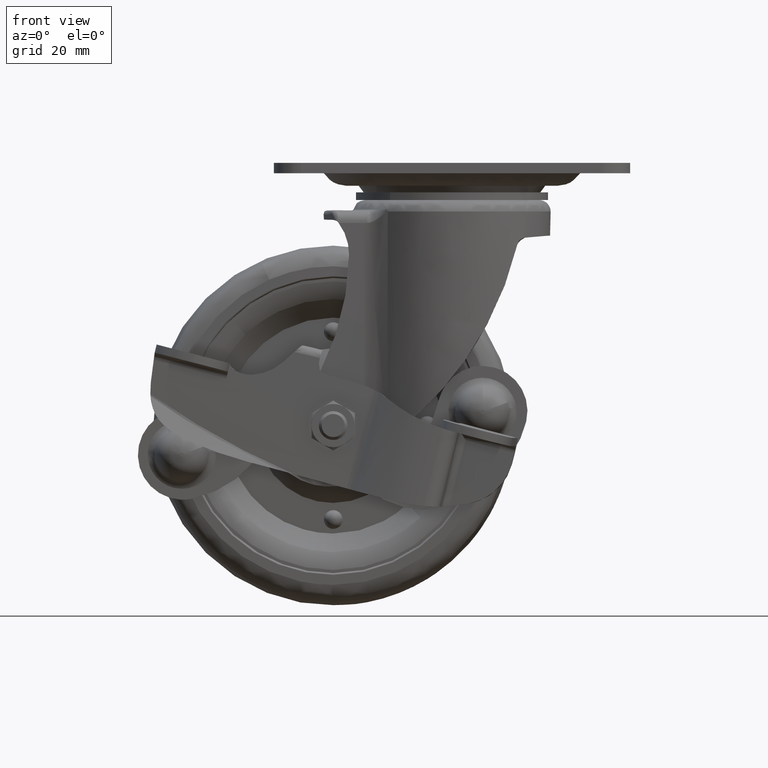
[diagram: clean part render]
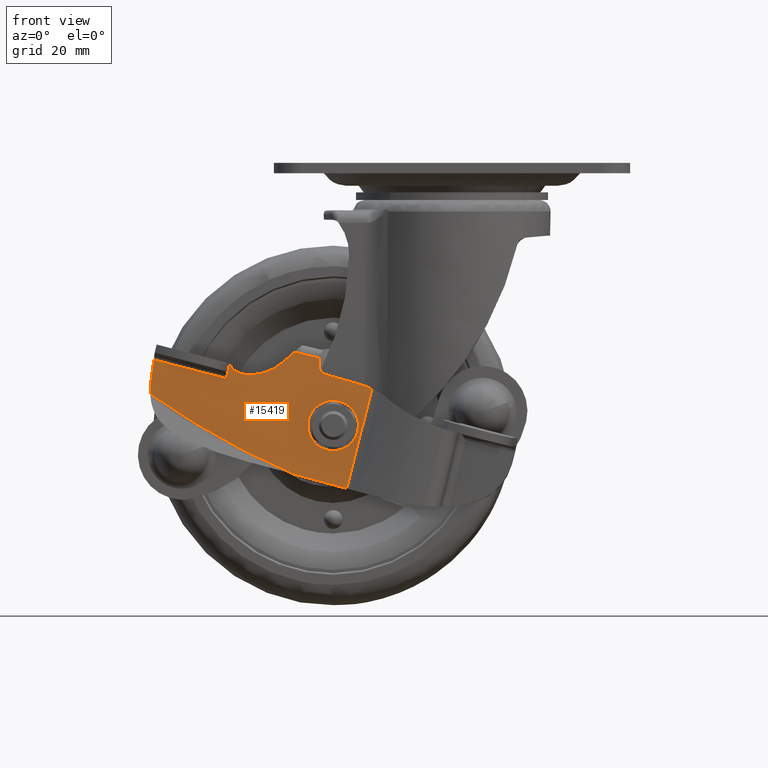
[diagram: same view with one face highlighted and labeled with its STEP entity id]
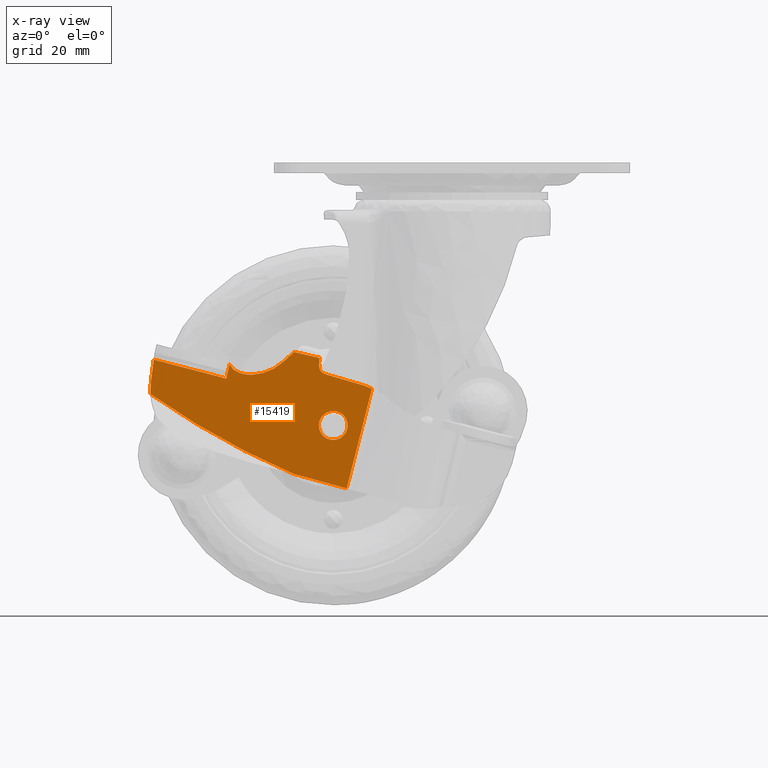
[diagram: x-ray of the same camera — body ghosted, the highlighted face saturated]
A machine part, front view. The second image highlights one B-rep face of the part: STEP entity #15419.
The next image is the same camera in x-ray: the body ghosted, the highlighted face saturated — about 0% of this face is hidden behind the body in this view.
In plain terms, the highlighted face is a freeform B-spline surface patch.
Its self-contained STEP definition (entity closure, byte-faithful):
#12128=CARTESIAN_POINT('',(-29.937728315368432,-22.300000000000001,-70.410367448433931));
#12129=VERTEX_POINT('',#12128);
#12135=CARTESIAN_POINT('',(-32.999587000000091,-22.300000000000001,-68.989794000000003));
#12136=VERTEX_POINT('',#12135);
#12137=CARTESIAN_POINT('',(-29.937728315368432,-22.300000000000001,-70.410367448433931));
#12138=CARTESIAN_POINT('',(-30.218785359383990,-22.299999999999962,-70.077684632768111));
#12139=CARTESIAN_POINT('',(-30.862667017277040,-22.300000000000050,-69.529243373639886));
#12140=CARTESIAN_POINT('',(-31.947152188929810,-22.300000000000079,-69.078837389872788));
#12141=CARTESIAN_POINT('',(-32.672971893639350,-22.299999999999951,-68.989747311979457));
#12142=CARTESIAN_POINT('',(-32.999587000000091,-22.300000000000001,-68.989794000000003));
#12143=B_SPLINE_CURVE_WITH_KNOTS('',3,(#12137,#12138,#12139,#12140,#12141,#12142),.UNSPECIFIED.,.F.,.U.,(4,1,1,4),(0.000000223169335,1.306501980789974,2.504120838996943,3.484001550726449),.UNSPECIFIED.);
#12144=EDGE_CURVE('',#12129,#12136,#12143,.T.);
#12146=CARTESIAN_POINT('',(-37.009586999997808,-22.300000000000001,-72.999798284209248));
#12147=VERTEX_POINT('',#12146);
#12148=CARTESIAN_POINT('',(-32.999587000000091,-22.300000000000001,-68.989794000000003));
#12149=CARTESIAN_POINT('',(-33.262009429142637,-22.300000000000029,-68.989801035756230));
#12150=CARTESIAN_POINT('',(-33.983812464499167,-22.299999999999969,-69.060689165508833));
#12151=CARTESIAN_POINT('',(-35.164403946501409,-22.300000000000079,-69.515601785755010));
#12152=CARTESIAN_POINT('',(-36.130650502983329,-22.299999999999951,-70.391646745308691));
#12153=CARTESIAN_POINT('',(-36.828645779050220,-22.300000000000018,-71.589620014759845));
#12154=CARTESIAN_POINT('',(-37.010271197628732,-22.299999999999891,-72.441948519010708));
#12155=CARTESIAN_POINT('',(-37.009586999997808,-22.300000000000001,-72.999798284209248));
#12156=B_SPLINE_CURVE_WITH_KNOTS('',3,(#12148,#12149,#12150,#12151,#12152,#12153,#12154,#12155),.UNSPECIFIED.,.F.,.U.,(4,1,1,1,1,4),(0.000000662927320,0.787318480854425,2.165315767272205,3.740017874883368,4.625861857310432,6.299053749560146),.UNSPECIFIED.);
#12157=EDGE_CURVE('',#12136,#12147,#12156,.T.);
#12159=CARTESIAN_POINT('',(-32.999587000000091,-22.300000000000001,-77.009793999999999));
#12160=VERTEX_POINT('',#12159);
#12161=CARTESIAN_POINT('',(-37.009586999997808,-22.300000000000001,-72.999798284209248));
#12162=CARTESIAN_POINT('',(-37.009657982819022,-22.299999999999969,-73.327864993381382));
#12163=CARTESIAN_POINT('',(-36.928636209464237,-22.300000000000090,-73.983974528547094));
#12164=CARTESIAN_POINT('',(-36.583673375394312,-22.299999999999891,-74.878346138552061));
#12165=CARTESIAN_POINT('',(-36.023484118316553,-22.300000000000178,-75.694897576831593));
#12166=CARTESIAN_POINT('',(-35.353856300585157,-22.299999999999731,-76.286952803248582));
#12167=CARTESIAN_POINT('',(-34.344191453482750,-22.300000000000331,-76.842778634254984));
#12168=CARTESIAN_POINT('',(-33.557467031954708,-22.299999999999830,-77.010563916750641));
#12169=CARTESIAN_POINT('',(-32.999587000000091,-22.300000000000001,-77.009793999999999));
#12170=B_SPLINE_CURVE_WITH_KNOTS('',3,(#12161,#12162,#12163,#12164,#12165,#12166,#12167,#12168,#12169),.UNSPECIFIED.,.F.,.U.,(4,1,1,1,1,1,4),(0.000000668777033,0.984211351240950,1.968478397935926,2.854293153081395,3.936842005193340,4.625858306954699,6.299048920137386),.UNSPECIFIED.);
#12171=EDGE_CURVE('',#12147,#12160,#12170,.T.);
#12173=CARTESIAN_POINT('',(-30.239285566410722,-22.300000000000001,-75.908544146997144));
#12174=VERTEX_POINT('',#12173);
#12175=CARTESIAN_POINT('',(-32.999587000000091,-22.300000000000001,-77.009793999999999));
#12176=CARTESIAN_POINT('',(-32.460379470101117,-22.300000000000061,-77.010421137572521));
#12177=CARTESIAN_POINT('',(-31.446135458623530,-22.299999999999820,-76.801783132238015));
#12178=CARTESIAN_POINT('',(-30.584140727338319,-22.300000000000129,-76.236294919781002));
#12179=CARTESIAN_POINT('',(-30.239285566410722,-22.300000000000001,-75.908544146997144));
#12180=B_SPLINE_CURVE_WITH_KNOTS('',3,(#12175,#12176,#12177,#12178,#12179),.UNSPECIFIED.,.F.,.U.,(4,1,4),(0.000000148603392,1.617366830531492,3.044536507586962),.UNSPECIFIED.);
#12181=EDGE_CURVE('',#12160,#12174,#12180,.T.);
#12261=CARTESIAN_POINT('',(-28.989587000002381,-22.300000000000001,-72.999789715790740));
#12262=VERTEX_POINT('',#12261);
#12263=CARTESIAN_POINT('',(-30.239285566410722,-22.300000000000001,-75.908544146997144));
#12264=CARTESIAN_POINT('',(-29.944059199221940,-22.300000000000001,-75.628632702637063));
#12265=CARTESIAN_POINT('',(-29.482073469215369,-22.300000000000018,-75.032183685790656));
#12266=CARTESIAN_POINT('',(-29.076053706641961,-22.300000000000029,-74.016766651153233));
#12267=CARTESIAN_POINT('',(-28.989504738138280,-22.299999999999969,-73.338806375015707));
#12268=CARTESIAN_POINT('',(-28.989587000002381,-22.300000000000001,-72.999789715790740));
#12269=B_SPLINE_CURVE_WITH_KNOTS('',3,(#12263,#12264,#12265,#12266,#12267,#12268),.UNSPECIFIED.,.F.,.U.,(4,1,1,4),(0.000000159172319,1.220445544464485,2.237467010753733,3.254518796792993),.UNSPECIFIED.);
#12270=EDGE_CURVE('',#12174,#12262,#12269,.T.);
#12272=CARTESIAN_POINT('',(-28.989587000002381,-22.300000000000001,-72.999789715790740));
#12273=CARTESIAN_POINT('',(-28.989030132878689,-22.300000000000018,-72.471897466581012));
#12274=CARTESIAN_POINT('',(-29.177701757174379,-22.299999999999979,-71.534071568870985));
#12275=CARTESIAN_POINT('',(-29.672510854066712,-22.300000000000018,-70.723735755417707));
#12276=CARTESIAN_POINT('',(-29.937728315368432,-22.300000000000001,-70.410367448433931));
#12277=B_SPLINE_CURVE_WITH_KNOTS('',3,(#12272,#12273,#12274,#12275,#12276),.UNSPECIFIED.,.F.,.U.,(4,1,4),(0.000000128220471,1.583437148860893,2.815051672041168),.UNSPECIFIED.);
#12278=EDGE_CURVE('',#12262,#12129,#12277,.T.);
#12473=CARTESIAN_POINT('',(-61.791181077791997,-22.300000000000001,-55.962456730751512));
#12474=VERTEX_POINT('',#12473);
#12482=CARTESIAN_POINT('',(-61.784185248080107,-22.300000000000001,-55.959874534425403));
#12483=VERTEX_POINT('',#12482);
#12484=CARTESIAN_POINT('',(-61.784185248080107,-22.300000000000001,-55.959874534425403));
#12485=CARTESIAN_POINT('',(-61.791181077791997,-22.300000000000001,-55.962456730751512));
#12486=QUASI_UNIFORM_CURVE('',1,(#12484,#12485),.UNSPECIFIED.,.F.,.U.);
#12487=EDGE_CURVE('',#12483,#12474,#12486,.T.);
#12602=CARTESIAN_POINT('',(-43.850062662139401,-22.300000000000001,-52.570988173950902));
#12603=VERTEX_POINT('',#12602);
#12611=CARTESIAN_POINT('',(-36.742625492527850,-22.300000000000001,-54.236154367159898));
#12612=VERTEX_POINT('',#12611);
#12613=CARTESIAN_POINT('',(-36.742625492527850,-22.300000000000001,-54.236154367159898));
#12614=CARTESIAN_POINT('',(-39.089800225707123,-22.299999999999990,-53.592343059888563));
#12615=CARTESIAN_POINT('',(-41.461177007051610,-22.300000000000029,-53.036761811021059));
#12616=CARTESIAN_POINT('',(-43.850062662139401,-22.300000000000001,-52.570988173950902));
#12617=B_SPLINE_CURVE_WITH_KNOTS('',3,(#12613,#12614,#12615,#12616),.UNSPECIFIED.,.F.,.U.,(4,4),(2.235563E-010,7.301617535693197),.UNSPECIFIED.);
#12618=EDGE_CURVE('',#12612,#12603,#12617,.T.);
#12878=CARTESIAN_POINT('',(-82.873741167204386,-22.300000000000001,-54.713014346548398));
#12879=VERTEX_POINT('',#12878);
#12890=CARTESIAN_POINT('',(-62.714569506420503,-22.300000000000001,-59.944218462642802));
#12891=VERTEX_POINT('',#12890);
#12892=CARTESIAN_POINT('',(-62.714569506420503,-22.300000000000001,-59.944218462642802));
#12893=CARTESIAN_POINT('',(-82.873741167204386,-22.300000000000001,-54.713014346548398));
#12894=QUASI_UNIFORM_CURVE('',1,(#12892,#12893),.UNSPECIFIED.,.F.,.U.);
#12895=EDGE_CURVE('',#12891,#12879,#12894,.T.);
#13128=CARTESIAN_POINT('',(-83.816660666309403,-22.300000000000001,-64.237335601089200));
#13129=VERTEX_POINT('',#13128);
#13152=CARTESIAN_POINT('',(-44.060313744618952,-22.300000000000001,-86.451898338749004));
#13153=VERTEX_POINT('',#13152);
#13161=CARTESIAN_POINT('',(-83.816660666309332,-22.300000000000001,-64.237335601089157));
#13162=CARTESIAN_POINT('',(-65.086352793087912,-22.300000000000001,-77.398897446197594));
#13163=CARTESIAN_POINT('',(-44.060313744618902,-22.300000000000001,-86.451898338748862));
#13171=(BOUNDED_CURVE()B_SPLINE_CURVE(2,(#13161,#13162,#13163),.UNSPECIFIED.,.F.,.U.)CURVE()GEOMETRIC_REPRESENTATION_ITEM()QUASI_UNIFORM_CURVE()RATIONAL_B_SPLINE_CURVE((1.0,0.994702453448273,1.0))REPRESENTATION_ITEM(''));
#13172=EDGE_CURVE('',#13129,#13153,#13171,.T.);
#14341=CARTESIAN_POINT('',(-83.699707341101799,-22.300000000000001,-61.040680463977502));
#14342=VERTEX_POINT('',#14341);
#14343=CARTESIAN_POINT('',(-83.699707341101799,-22.300000000000001,-61.040680463977502));
#14344=CARTESIAN_POINT('',(-83.838003385898517,-22.300000000000001,-62.099505129901161));
#14345=CARTESIAN_POINT('',(-83.877187934142782,-22.300000000000018,-63.171237389871507));
#14346=CARTESIAN_POINT('',(-83.816660666309403,-22.300000000000001,-64.237335601089200));
#14347=B_SPLINE_CURVE_WITH_KNOTS('',3,(#14343,#14344,#14345,#14346),.UNSPECIFIED.,.F.,.U.,(4,4),(3.719967E-009,3.203450463413509),.UNSPECIFIED.);
#14348=EDGE_CURVE('',#14342,#13129,#14347,.T.);
#14368=CARTESIAN_POINT('',(-83.699707341101799,-22.300000000000001,-61.040680463977502));
#14369=CARTESIAN_POINT('',(-82.873741167204386,-22.300000000000001,-54.713014346548398));
#14370=QUASI_UNIFORM_CURVE('',1,(#14368,#14369),.UNSPECIFIED.,.F.,.U.);
#14371=EDGE_CURVE('',#14342,#12879,#14370,.T.);
#14392=CARTESIAN_POINT('',(-60.344015373004297,-22.300000000000001,-57.710588064738403));
#14393=VERTEX_POINT('',#14392);
#14394=CARTESIAN_POINT('',(-61.784185248080107,-22.300000000000001,-55.959874534425403));
#14395=CARTESIAN_POINT('',(-61.415395982531471,-22.300000000000018,-56.624243672698718));
#14396=CARTESIAN_POINT('',(-60.924703162386180,-22.300000000000029,-57.220527164160302));
#14397=CARTESIAN_POINT('',(-60.344015373004297,-22.300000000000001,-57.710588064738403));
#14398=B_SPLINE_CURVE_WITH_KNOTS('',3,(#14394,#14395,#14396,#14397),.UNSPECIFIED.,.F.,.U.,(4,4),(0.000000022530192,2.279437305814102),.UNSPECIFIED.);
#14399=EDGE_CURVE('',#12483,#14393,#14398,.T.);
#14568=CARTESIAN_POINT('',(-29.265286076112648,-22.300000000000001,-90.471282014364604));
#14569=VERTEX_POINT('',#14568);
#14578=CARTESIAN_POINT('',(-29.265286076112648,-22.300000000000001,-90.471282014364604));
#14579=CARTESIAN_POINT('',(-44.060313744618952,-22.300000000000001,-86.451898338749004));
#14580=QUASI_UNIFORM_CURVE('',1,(#14578,#14579),.UNSPECIFIED.,.F.,.U.);
#14581=EDGE_CURVE('',#14569,#13153,#14580,.T.);
#14641=CARTESIAN_POINT('',(-22.220740831551801,-22.300000000000001,-62.770520932664098));
#14642=VERTEX_POINT('',#14641);
#14670=CARTESIAN_POINT('',(-24.276845150346752,-22.300000000000001,-61.929192220360797));
#14671=VERTEX_POINT('',#14670);
#14677=CARTESIAN_POINT('',(-22.220740831551801,-22.300000000000001,-62.770520932664098));
#14678=CARTESIAN_POINT('',(-22.890780278189471,-22.300000000000029,-62.454406865425447));
#14679=CARTESIAN_POINT('',(-23.577406951759311,-22.299999999999979,-62.173455356305709));
#14680=CARTESIAN_POINT('',(-24.276845150346752,-22.300000000000001,-61.929192220360797));
#14681=B_SPLINE_CURVE_WITH_KNOTS('',3,(#14677,#14678,#14679,#14680),.UNSPECIFIED.,.F.,.U.,(4,4),(1.023068E-009,2.222608866510140),.UNSPECIFIED.);
#14682=EDGE_CURVE('',#14642,#14671,#14681,.T.);
#14792=CARTESIAN_POINT('',(-34.250462577614101,-22.300000000000001,-59.032287137834899));
#14793=VERTEX_POINT('',#14792);
#14799=CARTESIAN_POINT('',(-24.276845150346752,-22.300000000000001,-61.929192220360797));
#14800=CARTESIAN_POINT('',(-27.546736424606600,-22.300000000000001,-60.787176556309753));
#14801=CARTESIAN_POINT('',(-30.877581700355929,-22.300000000000001,-59.819726424880223));
#14802=CARTESIAN_POINT('',(-34.250462577614101,-22.300000000000001,-59.032287137834899));
#14803=B_SPLINE_CURVE_WITH_KNOTS('',3,(#14799,#14800,#14801,#14802),.UNSPECIFIED.,.F.,.U.,(4,4),(3.739817E-010,10.390753628657290),.UNSPECIFIED.);
#14804=EDGE_CURVE('',#14671,#14793,#14803,.T.);
#14823=CARTESIAN_POINT('',(-35.956041947056697,-22.300000000000001,-58.311305724648712));
#14824=VERTEX_POINT('',#14823);
#14825=CARTESIAN_POINT('',(-35.956041947056697,-22.300000000000001,-58.311305724648712));
#14826=CARTESIAN_POINT('',(-35.434150856666548,-22.299999999999969,-58.646533130704171));
#14827=CARTESIAN_POINT('',(-34.854537490454597,-22.300000000000040,-58.891474595844620));
#14828=CARTESIAN_POINT('',(-34.250462577614101,-22.300000000000001,-59.032287137834899));
#14829=B_SPLINE_CURVE_WITH_KNOTS('',3,(#14825,#14826,#14827,#14828),.UNSPECIFIED.,.F.,.U.,(4,4),(0.000000024184134,1.860750973332584),.UNSPECIFIED.);
#14830=EDGE_CURVE('',#14824,#14793,#14829,.T.);
#14856=CARTESIAN_POINT('',(-36.805870473836158,-22.300000000000001,-57.029047312272112));
#14857=VERTEX_POINT('',#14856);
#14858=CARTESIAN_POINT('',(-36.805870473836158,-22.300000000000001,-57.029047312272112));
#14859=CARTESIAN_POINT('',(-36.756092006019188,-22.300000000000011,-57.321843050912932));
#14860=CARTESIAN_POINT('',(-36.542081339563552,-22.299999999999990,-57.819957258652842));
#14861=CARTESIAN_POINT('',(-36.150502430269910,-22.300000000000001,-58.186742020045763));
#14862=CARTESIAN_POINT('',(-35.956041947056697,-22.300000000000001,-58.311305724648712));
#14863=B_SPLINE_CURVE_WITH_KNOTS('',3,(#14858,#14859,#14860,#14861,#14862),.UNSPECIFIED.,.F.,.U.,(4,1,4),(0.000000215356234,0.890742930749526,1.583544487076910),.UNSPECIFIED.);
#14864=EDGE_CURVE('',#14857,#14824,#14863,.T.);
#14896=CARTESIAN_POINT('',(-36.742625492527850,-22.300000000000001,-54.236154367159898));
#14897=CARTESIAN_POINT('',(-36.943524939341238,-22.300000000000001,-55.151442246677192));
#14898=CARTESIAN_POINT('',(-36.965326642087049,-22.300000000000029,-56.105601478272092));
#14899=CARTESIAN_POINT('',(-36.805870473836158,-22.300000000000001,-57.029047312272112));
#14900=B_SPLINE_CURVE_WITH_KNOTS('',3,(#14896,#14897,#14898,#14899),.UNSPECIFIED.,.F.,.U.,(4,4),(0.000000017452648,2.811085896698909),.UNSPECIFIED.);
#14901=EDGE_CURVE('',#12612,#14857,#14900,.T.);
#14972=CARTESIAN_POINT('',(-46.963934335275397,-22.300000000000001,-55.374913283564503));
#14973=VERTEX_POINT('',#14972);
#14974=CARTESIAN_POINT('',(-46.963934335275397,-22.300000000000001,-55.374913283564503));
#14975=CARTESIAN_POINT('',(-43.850062662139401,-22.300000000000001,-52.570988173950902));
#14976=QUASI_UNIFORM_CURVE('',1,(#14974,#14975),.UNSPECIFIED.,.F.,.U.);
#14977=EDGE_CURVE('',#14973,#12603,#14976,.T.);
#15004=CARTESIAN_POINT('',(-55.606627265260101,-22.300000000000001,-58.899053961095902));
#15005=VERTEX_POINT('',#15004);
#15006=CARTESIAN_POINT('',(-55.606627265260101,-22.300000000000001,-58.899053961095902));
#15007=CARTESIAN_POINT('',(-54.218996357600901,-22.299999999999979,-58.842345143639953));
#15008=CARTESIAN_POINT('',(-52.348408869623377,-22.300000000000029,-58.476271022888767));
#15009=CARTESIAN_POINT('',(-49.418060354994601,-22.299999999999962,-57.244297204876332));
#15010=CARTESIAN_POINT('',(-47.921957605135731,-22.300000000000090,-56.238128833382483));
#15011=CARTESIAN_POINT('',(-46.963934335275397,-22.300000000000001,-55.374913283564503));
#15012=B_SPLINE_CURVE_WITH_KNOTS('',3,(#15006,#15007,#15008,#15009,#15010,#15011),.UNSPECIFIED.,.F.,.U.,(4,1,1,4),(0.000000065616845,4.166023314252887,5.653814972600275,9.522268679682485),.UNSPECIFIED.);
#15013=EDGE_CURVE('',#15005,#14973,#15012,.T.);
#15039=CARTESIAN_POINT('',(-60.344015373004297,-22.300000000000001,-57.710588064738403));
#15040=CARTESIAN_POINT('',(-59.500123782213329,-22.300000000000001,-58.209164865972383));
#15041=CARTESIAN_POINT('',(-57.933903751089062,-22.299999999999979,-58.801871867205811));
#15042=CARTESIAN_POINT('',(-56.276624948640951,-22.300000000000018,-58.926863861942053));
#15043=CARTESIAN_POINT('',(-55.606627265260101,-22.300000000000001,-58.899053961095902));
#15044=B_SPLINE_CURVE_WITH_KNOTS('',3,(#15039,#15040,#15041,#15042,#15043),.UNSPECIFIED.,.F.,.U.,(4,1,4),(0.000000061156697,2.940252467136789,4.952037980304364),.UNSPECIFIED.);
#15045=EDGE_CURVE('',#14393,#15005,#15044,.T.);
#15206=CARTESIAN_POINT('',(-61.791181077791997,-22.300000000000001,-55.962456730751512));
#15207=CARTESIAN_POINT('',(-62.714569506420503,-22.300000000000001,-59.944218462642802));
#15208=QUASI_UNIFORM_CURVE('',1,(#15206,#15207),.UNSPECIFIED.,.F.,.U.);
#15209=EDGE_CURVE('',#12474,#12891,#15208,.T.);
#15317=CARTESIAN_POINT('',(-29.265286076112648,-22.300000000000001,-90.471282014364604));
#15318=CARTESIAN_POINT('',(-22.220740831551801,-22.300000000000001,-62.770520932664098));
#15319=QUASI_UNIFORM_CURVE('',1,(#15317,#15318),.UNSPECIFIED.,.F.,.U.);
#15320=EDGE_CURVE('',#14569,#14642,#15319,.T.);
#15386=CARTESIAN_POINT('',(-86.922324251967382,-22.300000000000001,-50.677867858518688));
#15387=CARTESIAN_POINT('',(-19.142645962421788,-22.300000000000001,-50.677867858518688));
#15388=CARTESIAN_POINT('',(-86.922324251967382,-22.300000000000001,-92.364402668651863));
#15389=CARTESIAN_POINT('',(-19.142645962421788,-22.300000000000001,-92.364402668651863));
#15390=B_SPLINE_SURFACE_WITH_KNOTS('',1,1,((#15386,#15388),(#15387,#15389)),.UNSPECIFIED.,.F.,.F.,.U.,(2,2),(2,2),(0.0,67.779678289545586),(0.0,41.686534810133182),.UNSPECIFIED.);
#15391=ORIENTED_EDGE('',*,*,#14399,.F.);
#15392=ORIENTED_EDGE('',*,*,#12487,.T.);
#15393=ORIENTED_EDGE('',*,*,#15209,.T.);
#15394=ORIENTED_EDGE('',*,*,#12895,.T.);
#15395=ORIENTED_EDGE('',*,*,#14371,.F.);
#15396=ORIENTED_EDGE('',*,*,#14348,.T.);
#15397=ORIENTED_EDGE('',*,*,#13172,.T.);
#15398=ORIENTED_EDGE('',*,*,#14581,.F.);
#15399=ORIENTED_EDGE('',*,*,#15320,.T.);
#15400=ORIENTED_EDGE('',*,*,#14682,.T.);
#15401=ORIENTED_EDGE('',*,*,#14804,.T.);
#15402=ORIENTED_EDGE('',*,*,#14830,.F.);
#15403=ORIENTED_EDGE('',*,*,#14864,.F.);
#15404=ORIENTED_EDGE('',*,*,#14901,.F.);
#15405=ORIENTED_EDGE('',*,*,#12618,.T.);
#15406=ORIENTED_EDGE('',*,*,#14977,.F.);
#15407=ORIENTED_EDGE('',*,*,#15013,.F.);
#15408=ORIENTED_EDGE('',*,*,#15045,.F.);
#15409=EDGE_LOOP('',(#15391,#15392,#15393,#15394,#15395,#15396,#15397,#15398,#15399,#15400,#15401,#15402,#15403,#15404,#15405,#15406,#15407,#15408));
#15410=FACE_OUTER_BOUND('',#15409,.T.);
#15411=ORIENTED_EDGE('',*,*,#12157,.F.);
#15412=ORIENTED_EDGE('',*,*,#12144,.F.);
#15413=ORIENTED_EDGE('',*,*,#12278,.F.);
#15414=ORIENTED_EDGE('',*,*,#12270,.F.);
#15415=ORIENTED_EDGE('',*,*,#12181,.F.);
#15416=ORIENTED_EDGE('',*,*,#12171,.F.);
#15417=EDGE_LOOP('',(#15411,#15412,#15413,#15414,#15415,#15416));
#15418=FACE_BOUND('',#15417,.T.);
#15419=ADVANCED_FACE('',(#15410,#15418),#15390,.F.);